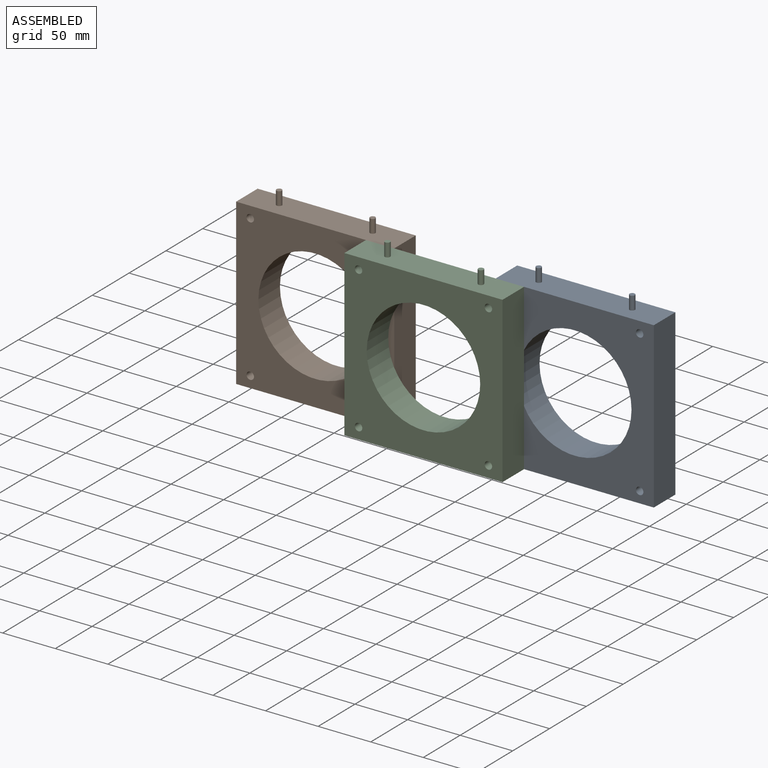
[diagram: assembled view]
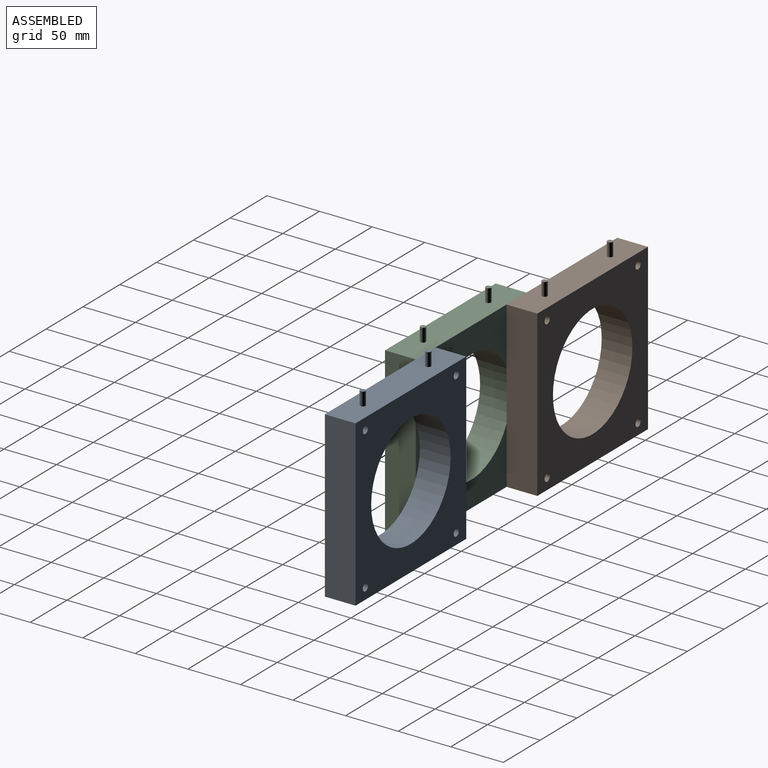
[diagram: assembled view, second angle]
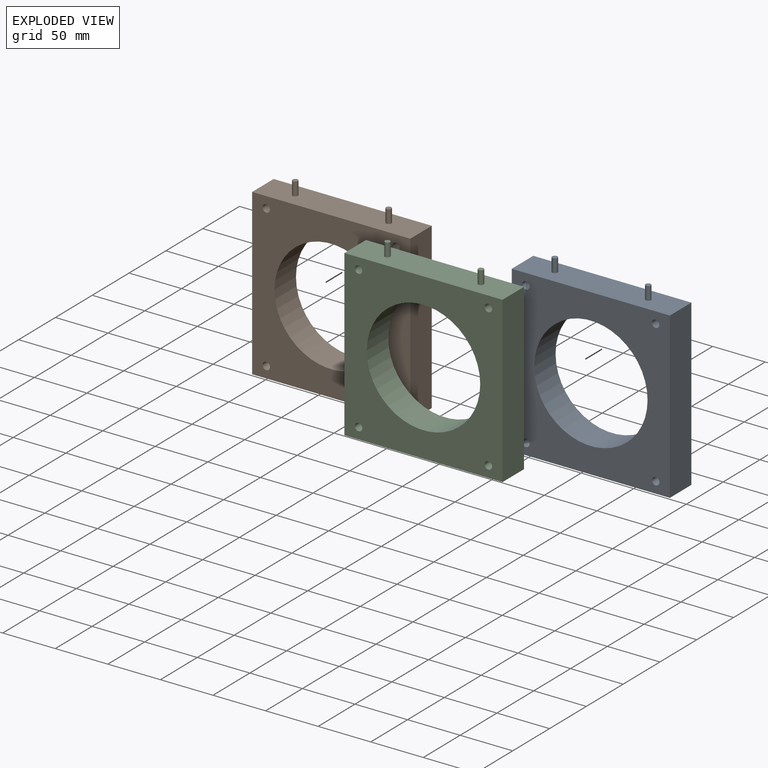
[diagram: exploded view]
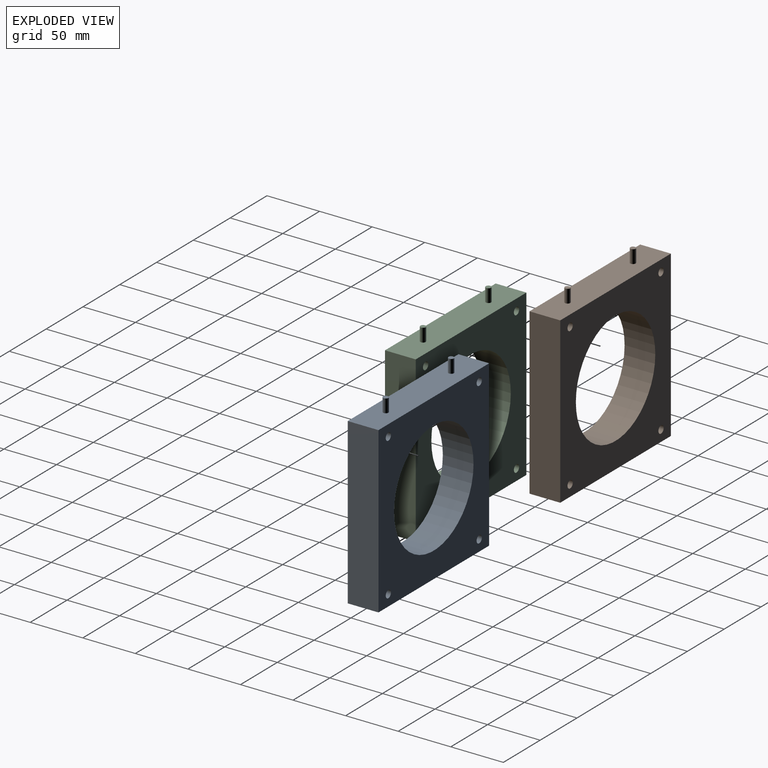
[diagram: exploded view, second angle]
ASSEMBLY  parts=3 mates=2
PART A: 15 faces, bbox 150.4x29.2x169.4 mm
  f0: plane 156.72x29.21mm, normal (-1,0,0), area 4577.7mm2, adj f1,f8,f9,f10
  f1: plane 150.37x29.21mm, normal (0,0,-1), area 4392.2mm2, adj f0,f2,f9,f10
  f2: plane 156.72x29.21mm, normal (1,0,0), area 4577.7mm2, adj f1,f8,f9,f10
  f3: cylinder r=3.56mm len=29.21mm, axis (0,1,0), area 652.6mm2, adj f9,f10
  f4: cylinder r=3.56mm len=29.21mm, axis (0,1,0), area 652.6mm2, adj f9,f10
  f5: cylinder r=3.56mm len=29.21mm, axis (0,1,0), area 652.6mm2, adj f9,f10
  f6: cylinder r=3.56mm len=29.21mm, axis (0,1,0), area 652.6mm2, adj f9,f10
  f7: cylinder r=53.98mm len=107.95mm, axis (0,1,0), area 9906.1mm2, adj f9,f10
  f8: plane 150.37x29.21mm, normal (0,0,1), area 4351.7mm2, adj f0,f2,f9,f10,f11,f13
  f9: plane 156.72x150.37mm, normal (0,-1,0), area 14254.1mm2, adj f0,f1,f2,f3,f4,f5,f6,f7
  f10: plane 156.72x150.37mm, normal (0,1,0), area 14254.1mm2, adj f0,f1,f2,f3,f4,f5,f6,f7
  f11: cylinder r=2.54mm len=12.7mm, axis (0,0,-1), area 202.7mm2, adj f8,f12
  f12: plane 5.08x5.08mm, normal (0,0,1), area 20.3mm2, adj f11
  f13: cylinder r=2.54mm len=12.7mm, axis (0,0,-1), area 202.7mm2, adj f8,f14
  f14: plane 5.08x5.08mm, normal (0,0,1), area 20.3mm2, adj f13
PART B: same geometry as A
PART C: same geometry as A
PLACE A t=(115.75,33.46,6.69)mm
PLACE B t=(-131.13,33.46,6.69)mm
PLACE C t=(-7.69,4.25,6.69)mm fixed
MATE fastened C.f5 <-> A.f6  axis (0,1,0) through (54.03,18.86,74.38)mm
MATE fastened B.f5 <-> C.f6  axis (0,-1,0) through (-69.41,18.86,74.38)mm
